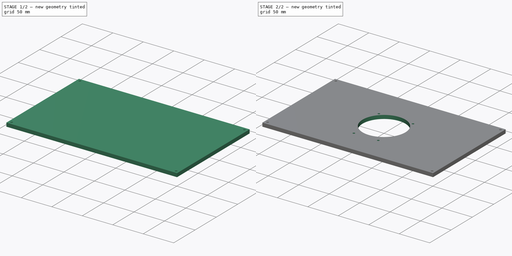
[diagram: build sequence overview — one tinted view per stage of 2, left to right]
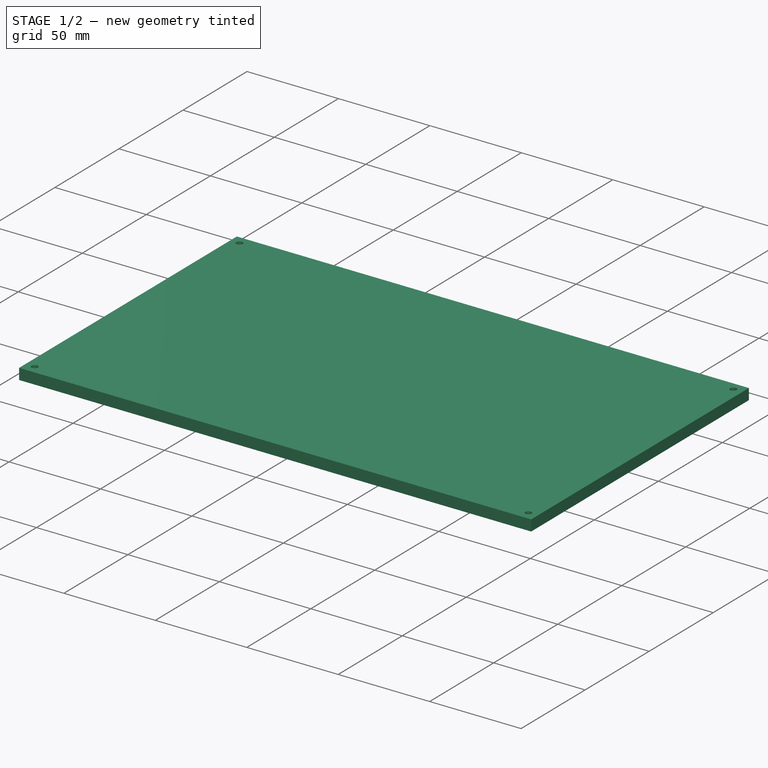
[diagram: stage 1 of 2 — iso view after this stage's code; geometry added in this stage tinted green]
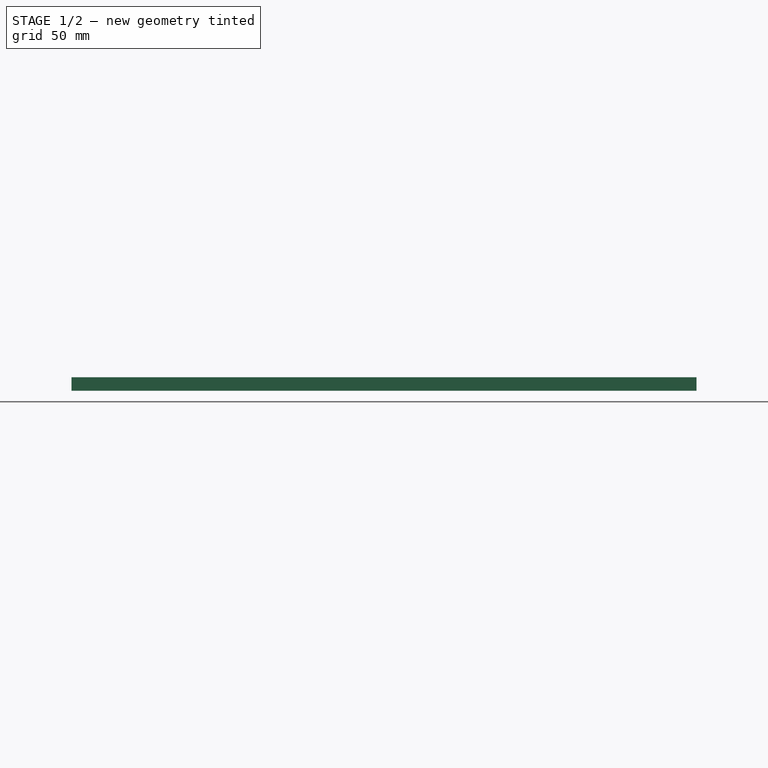
[diagram: stage 1 of 2 — front view after this stage's code; geometry added in this stage tinted green]
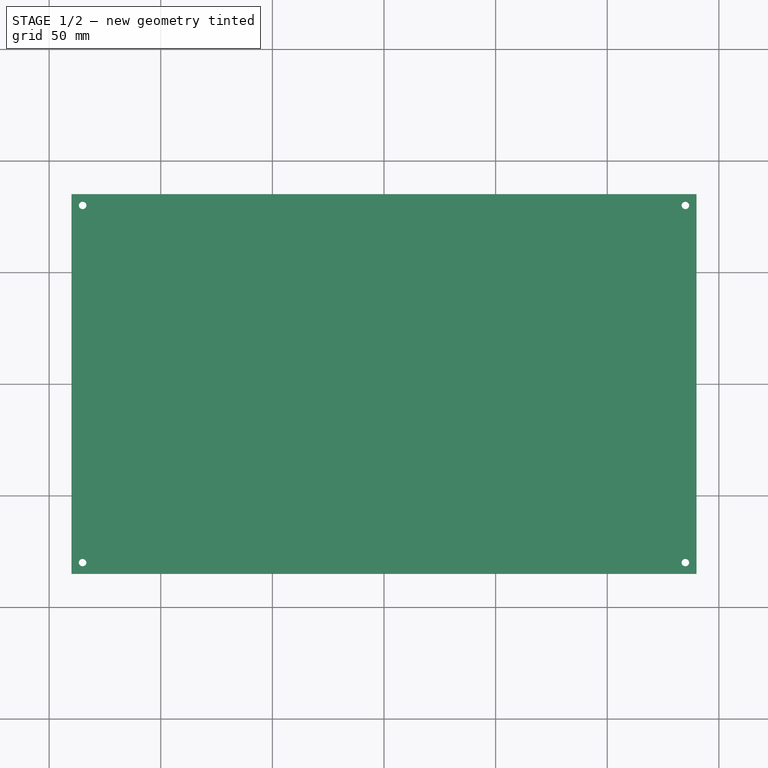
[diagram: stage 1 of 2 — top view after this stage's code; geometry added in this stage tinted green]
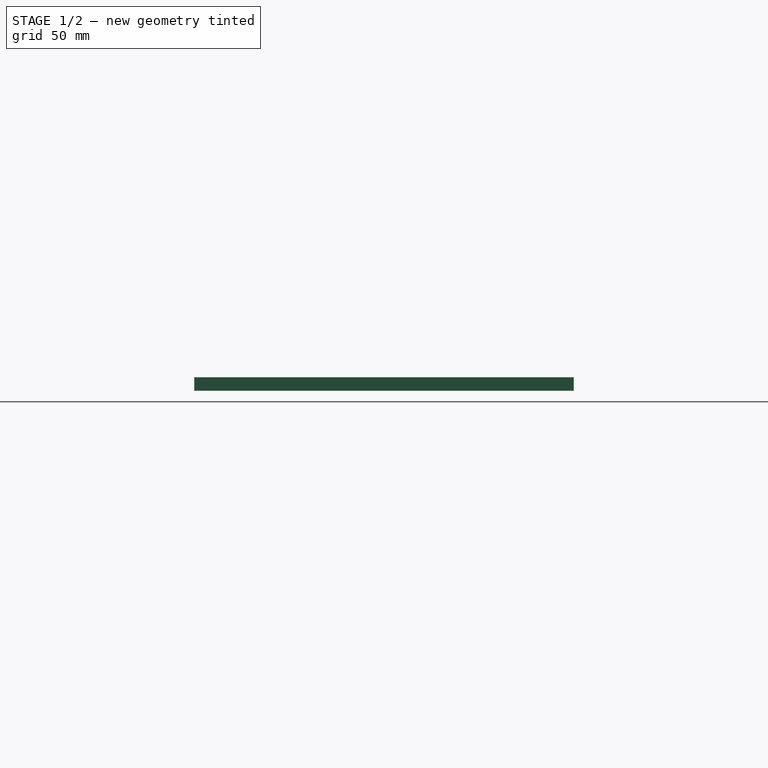
[diagram: stage 1 of 2 — right view after this stage's code; geometry added in this stage tinted green]
FCSTD DOCUMENT  (FreeCAD 0.19R24291 (Git))
Label: Plaque_Lidar
License: All rights reserved
LicenseURL: http://en.wikipedia.org/wiki/All_rights_reserved
objects: Sketcher::SketchObject×3, PartDesign::Pad×1, PartDesign::Pocket×1, PartDesign::Body×1
note: 8 computed .brp shape members not serialized (recipe doc carries the construction recipe); baked Part::Feature solids carry a one-line shape summary decoded from their .brp

FEATURE [Sketcher::SketchObject] Sketch  label="sk1"
  FullyConstrained = true
  MapMode = 5
  Support = -> [XY_Plane]
  sketch-geometry (10):
    g0: LineSegment StartX=-140 StartY=-85 StartZ=0 EndX=140 EndY=-85 EndZ=0
    g1: LineSegment StartX=140 StartY=-85 StartZ=0 EndX=140 EndY=85 EndZ=0
    g2: LineSegment StartX=140 StartY=85 StartZ=0 EndX=-140 EndY=85 EndZ=0
    g3: LineSegment StartX=-140 StartY=85 StartZ=0 EndX=-140 EndY=-85 EndZ=0
    g4: LineSegment StartX=-140 StartY=85 StartZ=0 EndX=140 EndY=-85 EndZ=0
    g5: LineSegment StartX=-140 StartY=-85 StartZ=0 EndX=140 EndY=85 EndZ=0
    g6: Circle CenterX=-135 CenterY=80 CenterZ=0 NormalX=0 NormalY=0 NormalZ=1 AngleXU=0 Radius=1.7
    g7: Circle CenterX=-135 CenterY=-80 CenterZ=0 NormalX=0 NormalY=0 NormalZ=1 AngleXU=0 Radius=1.7
    g8: Circle CenterX=135 CenterY=80 CenterZ=0 NormalX=0 NormalY=0 NormalZ=1 AngleXU=0 Radius=1.7
    g9: Circle CenterX=135 CenterY=-80 CenterZ=0 NormalX=0 NormalY=0 NormalZ=1 AngleXU=0 Radius=1.7
  constraints (28):
    c: Coincident(g0,g1)
    c: Coincident(g1,g2)
    c: Coincident(g2,g3)
    c: Coincident(g3,g0)
    c: Horizontal(g0)
    c: Horizontal(g2)
    c: Vertical(g1)
    c: Vertical(g3)
    c: Coincident(g4,g2)
    c: Coincident(g4,g0)
    c: Coincident(g5,g0)
    c: Coincident(g5,g1)
    c: PointOnObject(g-1,g5)
    c: PointOnObject(g-1,g4)
    c: DistanceX(g2,g2) = 280
    c: DistanceY(g1,g1) = 170
    c: DistanceY(g6,g2) = 5
    c: DistanceX(g2,g6) = 5
    c: Radius(g6) = 1.7
    c: Radius(g7) = 1.7
    c: Radius(g8) = 1.7
    c: Radius(g9) = 1.7
    c: Vertical(g7,g6)
    c: DistanceY(g0,g7) = 5
    c: Horizontal(g9,g7)
    c: Horizontal(g8,g6)
    c: DistanceX(g8,g1) = 5
    c: Vertical(g9,g8)
FEATURE [Sketcher::SketchObject] Sketch001
  FullyConstrained = false
  MapMode = 5
  Support = -> [XY_Plane]
  sketch-geometry (1):
    g0: Circle CenterX=-8.68593 CenterY=0 CenterZ=0 NormalX=0 NormalY=0 NormalZ=1 AngleXU=0 Radius=35.14
  constraints (3):
    c: PointOnObject(g0,g-1)
    c: Radius(g0) = 35.14
    c: Coincident(g-1)
FEATURE [PartDesign::Pad] Pad  label="Rectangle"
  Direction = (1,1,1)
  Length = 6
  Length2 = 100
  Profile = -> Sketch
  Type = 0
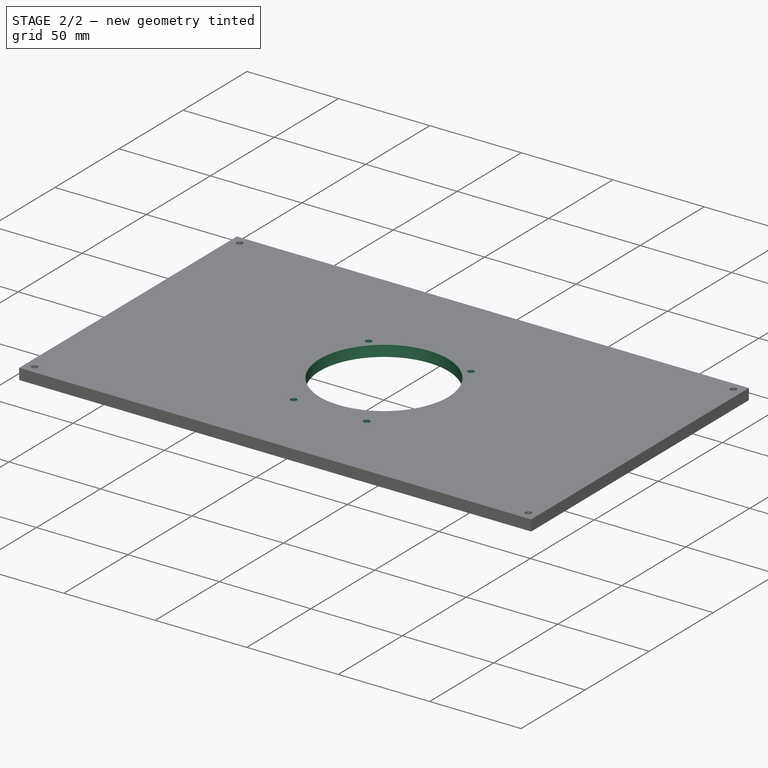
[diagram: stage 2 of 2 — iso view after this stage's code; geometry added in this stage tinted green]
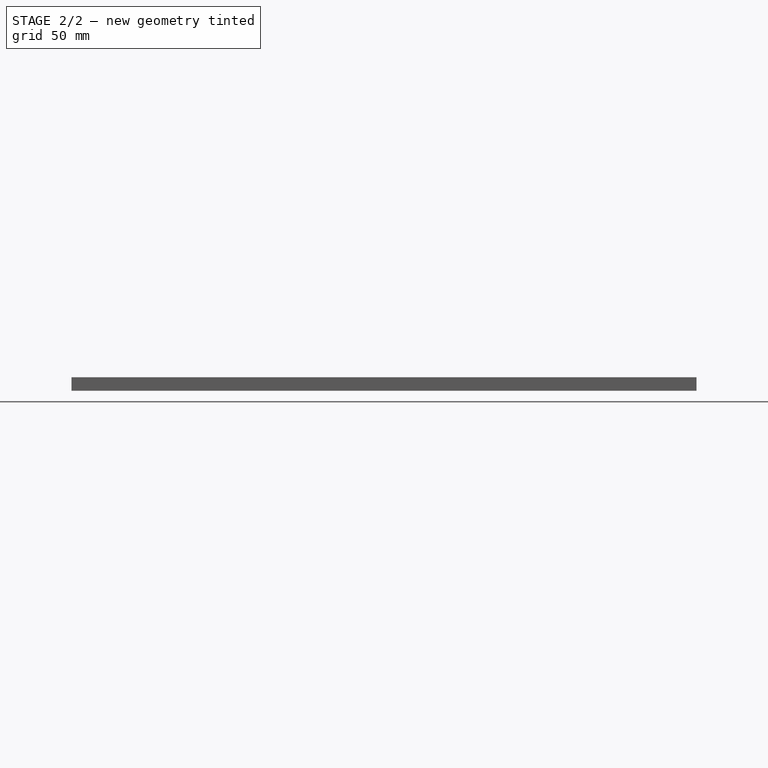
[diagram: stage 2 of 2 — front view after this stage's code; geometry added in this stage tinted green]
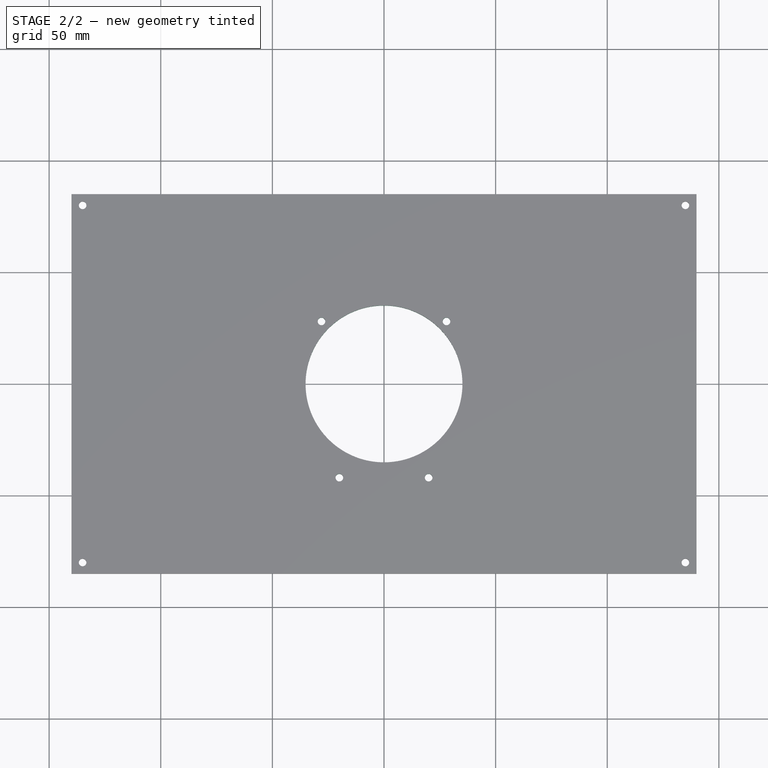
[diagram: stage 2 of 2 — top view after this stage's code; geometry added in this stage tinted green]
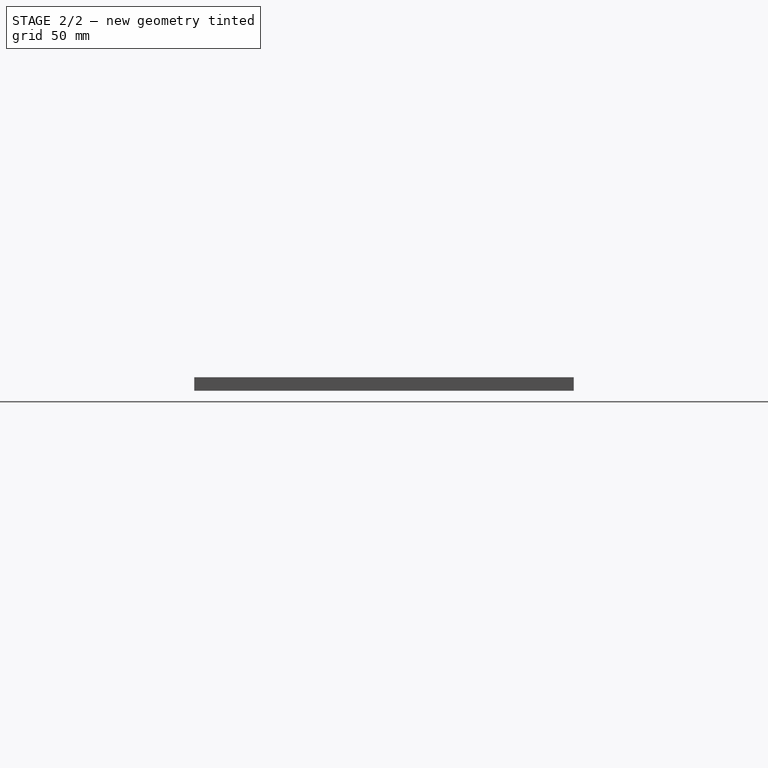
[diagram: stage 2 of 2 — right view after this stage's code; geometry added in this stage tinted green]
FEATURE [Sketcher::SketchObject] Sketch002
  FullyConstrained = true
  MapMode = 5
  Placement = pos=(0,0,6) rot=(0,0,1;0rad)
  Support = -> [Pad]
  sketch-geometry (7):
    g0: Circle CenterX=0 CenterY=0 CenterZ=0 NormalX=0 NormalY=0 NormalZ=1 AngleXU=0 Radius=35.14
    g1: Circle CenterX=-28 CenterY=28 CenterZ=0 NormalX=0 NormalY=0 NormalZ=1 AngleXU=0 Radius=1.7
    g2: Circle CenterX=28 CenterY=28 CenterZ=0 NormalX=0 NormalY=0 NormalZ=1 AngleXU=0 Radius=1.7
    g3: LineSegment StartX=-28 StartY=28 StartZ=0 EndX=28 EndY=28 EndZ=0
    g4: Circle CenterX=-20 CenterY=-42 CenterZ=0 NormalX=0 NormalY=0 NormalZ=1 AngleXU=0 Radius=1.7
    g5: Circle CenterX=20 CenterY=-42 CenterZ=0 NormalX=0 NormalY=0 NormalZ=1 AngleXU=0 Radius=1.7
    g6: LineSegment StartX=-20 StartY=-42 StartZ=0 EndX=20 EndY=-42 EndZ=0
  constraints (16):
    c: Coincident(g0,g-1)
    c: Radius(g0) = 35.14
    c: Coincident(g3,g1)
    c: Coincident(g3,g2)
    c: Radius(g1) = 1.7
    c: Equal(g1,g2)
    c: Symmetric(g2,g1,g-2)
    c: DistanceY(g-1,g2) = 28
    c: DistanceX(g1,g2) = 56
    c: Coincident(g6,g4)
    c: Coincident(g6,g5)
    c: Equal(g4,g5)
    c: Equal(g5,g2)
    c: DistanceX(g4,g5) = 40
    c: DistanceY(g4,g-1) = 42
    c: Symmetric(g5,g4,g-2)
FEATURE [PartDesign::Pocket] Pocket  label="Trous_Lidar"
  BaseFeature = -> Pad
  Length = 5
  Length2 = 100
  Profile = -> Sketch002
  Type = 1
FEATURE [PartDesign::Body] Body
  Group = -> [Sketch,Pad,Sketch002,Pocket]
  Origin = -> Origin
  Tip = -> Pocket
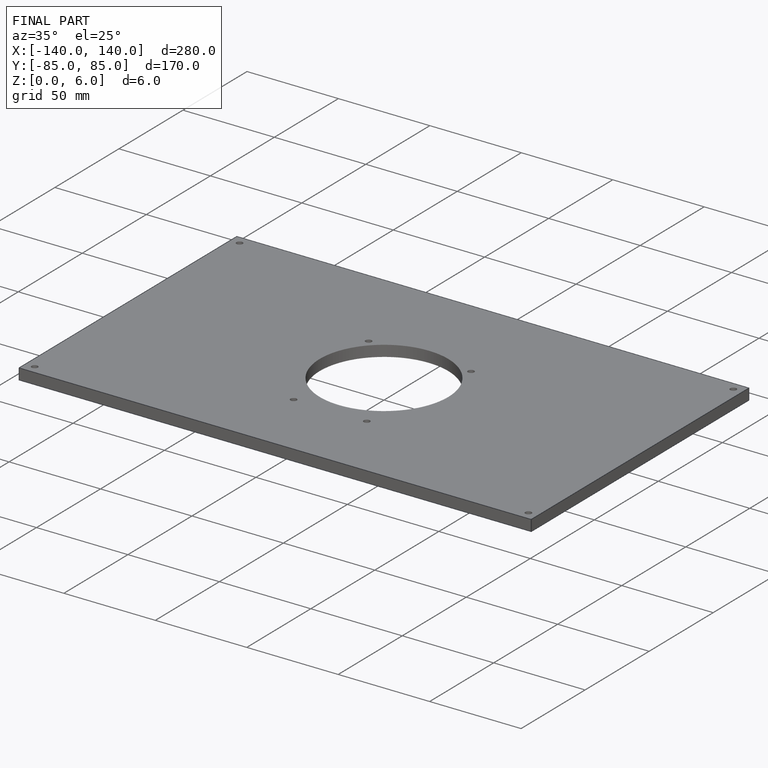
[diagram: finished part — iso view with bounding-box wireframe]
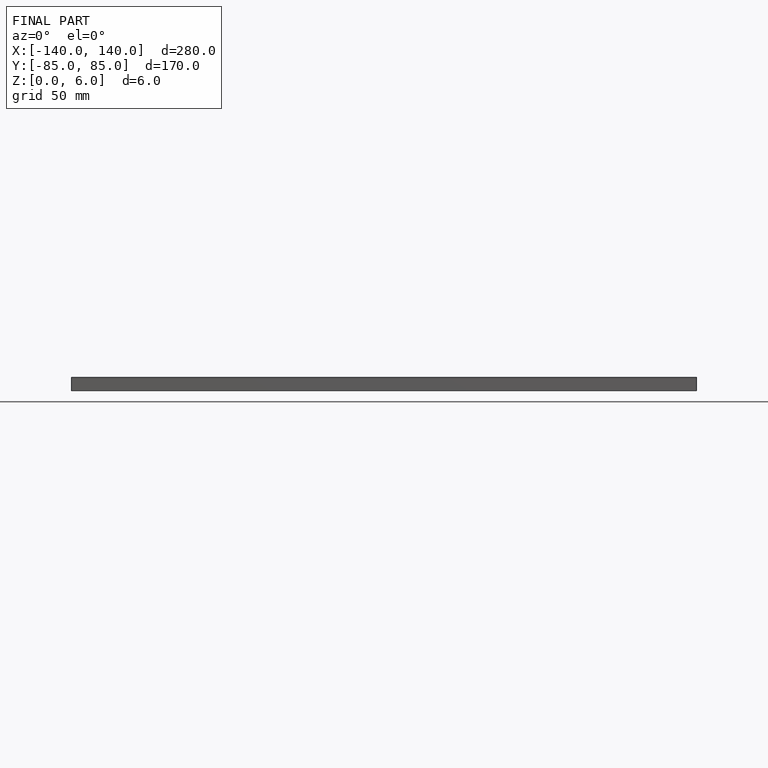
[diagram: finished part — front view with bounding-box wireframe]
